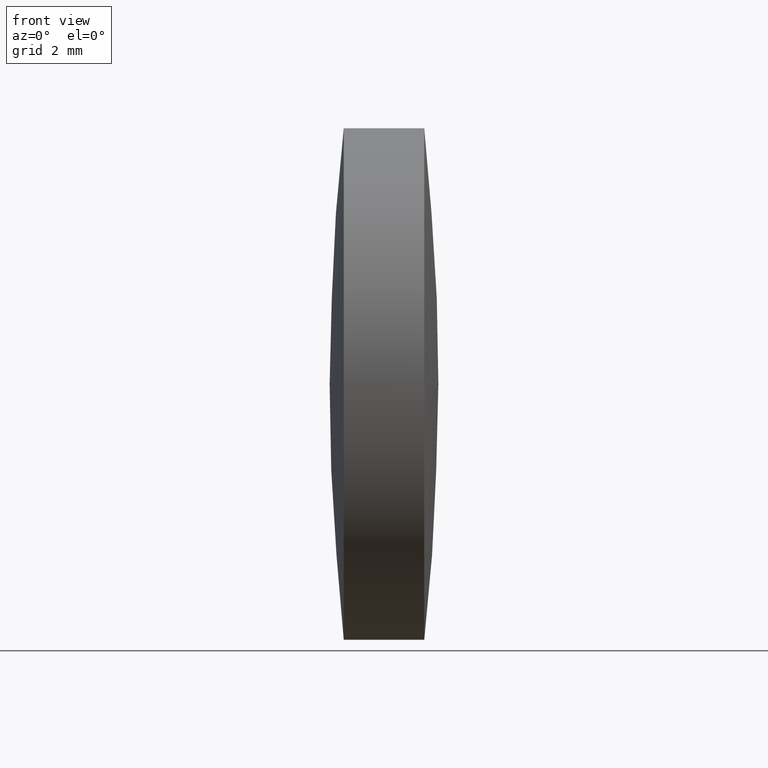
[diagram: clean part render]
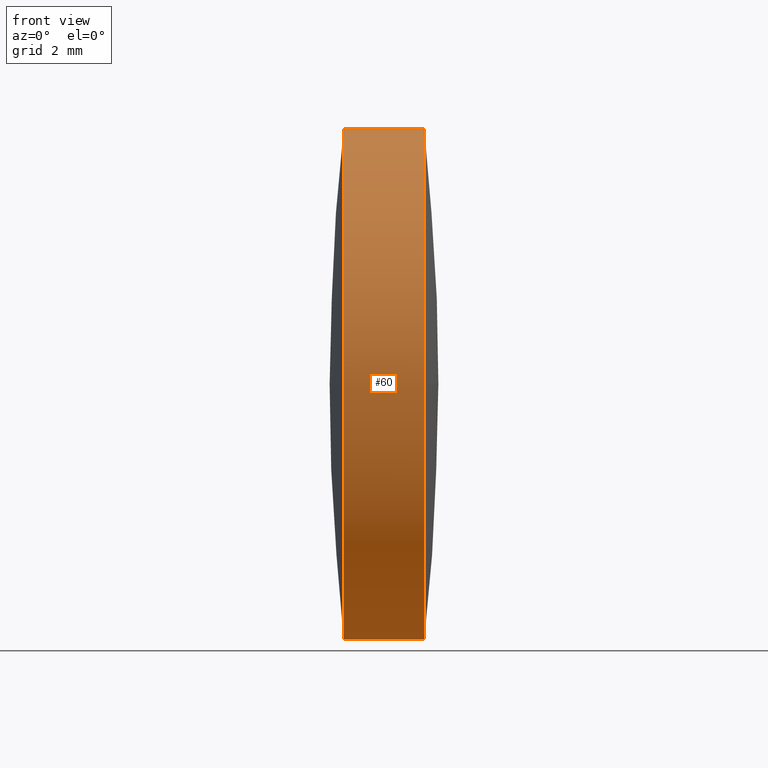
[diagram: same view with one face highlighted and labeled with its STEP entity id]
A machine part, front view. The second image highlights one B-rep face of the part: STEP entity #60.
In plain terms, the highlighted cylindrical surface (partial cylindrical patch) has radius 6.35 mm, axis along (-1, -0, -0).
Its self-contained STEP definition (entity closure, byte-faithful):
#4 = VERTEX_POINT ( 'NONE', #194 ) ;
#14 = DIRECTION ( 'NONE',  ( -1.000000000000000000, -0.0000000000000000000, -0.0000000000000000000 ) ) ;
#15 = DIRECTION ( 'NONE',  ( -1.000000000000000000, -0.0000000000000000000, -0.0000000000000000000 ) ) ;
#30 = CIRCLE ( 'NONE', #317, 6.349999999999997900 ) ;
#39 = DIRECTION ( 'NONE',  ( -1.000000000000000000, -0.0000000000000000000, -0.0000000000000000000 ) ) ;
#40 = CARTESIAN_POINT ( 'NONE',  ( 44.22913117304555200, 17.95805651159243500, 0.0000000000000000000 ) ) ;
#42 = CARTESIAN_POINT ( 'NONE',  ( 42.22906260161698100, 24.30805651159239000, 0.0000000000000000000 ) ) ;
#56 = ORIENTED_EDGE ( 'NONE', *, *, #247, .T. ) ;
#60 = ADVANCED_FACE ( 'NONE', ( #307 ), #319, .T. ) ;
#65 = CIRCLE ( 'NONE', #334, 6.349999999999997900 ) ;
#72 = ORIENTED_EDGE ( 'NONE', *, *, #240, .F. ) ;
#78 = VERTEX_POINT ( 'NONE', #222 ) ;
#86 = CARTESIAN_POINT ( 'NONE',  ( 44.22913117304555200, 24.30805651159239000, 0.0000000000000000000 ) ) ;
#87 = DIRECTION ( 'NONE',  ( 0.0000000000000000000, 0.0000000000000000000, 1.000000000000000000 ) ) ;
#88 = DIRECTION ( 'NONE',  ( -1.000000000000000000, -0.0000000000000000000, -0.0000000000000000000 ) ) ;
#101 = CARTESIAN_POINT ( 'NONE',  ( 42.22906260161698100, 24.30805651159239000, 0.0000000000000000000 ) ) ;
#121 = EDGE_CURVE ( 'NONE', #232, #4, #233, .T. ) ;
#131 = DIRECTION ( 'NONE',  ( -1.000000000000000000, -0.0000000000000000000, -0.0000000000000000000 ) ) ;
#133 = CIRCLE ( 'NONE', #196, 6.349999999999997900 ) ;
#136 = CIRCLE ( 'NONE', #185, 6.349999999999997900 ) ;
#137 = VERTEX_POINT ( 'NONE', #207 ) ;
#140 = ORIENTED_EDGE ( 'NONE', *, *, #121, .F. ) ;
#145 = DIRECTION ( 'NONE',  ( -1.000000000000000000, -0.0000000000000000000, -0.0000000000000000000 ) ) ;
#149 = CARTESIAN_POINT ( 'NONE',  ( 39.65270067541857900, 24.30805651159239000, -6.349999999999997900 ) ) ;
#151 = EDGE_CURVE ( 'NONE', #78, #137, #30, .T. ) ;
#164 = ORIENTED_EDGE ( 'NONE', *, *, #238, .T. ) ;
#167 = VECTOR ( 'NONE', #14, 1000.000000000000000 ) ;
#183 = CARTESIAN_POINT ( 'NONE',  ( 39.65270067541857900, 24.30805651159239000, 6.349999999999997900 ) ) ;
#185 = AXIS2_PLACEMENT_3D ( 'NONE', #205, #39, #282 ) ;
#192 = DIRECTION ( 'NONE',  ( -1.000000000000000000, -0.0000000000000000000, -0.0000000000000000000 ) ) ;
#194 = CARTESIAN_POINT ( 'NONE',  ( 42.22906260161698100, 24.30805651159239000, -6.349999999999997900 ) ) ;
#196 = AXIS2_PLACEMENT_3D ( 'NONE', #86, #145, #278 ) ;
#203 = EDGE_LOOP ( 'NONE', ( #140, #56, #217, #164, #333, #72 ) ) ;
#205 = CARTESIAN_POINT ( 'NONE',  ( 44.22913117304555200, 24.30805651159239000, 0.0000000000000000000 ) ) ;
#207 = CARTESIAN_POINT ( 'NONE',  ( 42.22906260161698100, 24.30805651159239000, 6.349999999999997900 ) ) ;
#215 = VERTEX_POINT ( 'NONE', #227 ) ;
#217 = ORIENTED_EDGE ( 'NONE', *, *, #284, .T. ) ;
#222 = CARTESIAN_POINT ( 'NONE',  ( 42.22906260161698100, 17.95805651159237500, -7.776507174585665500E-016 ) ) ;
#227 = CARTESIAN_POINT ( 'NONE',  ( 44.22913117304555200, 24.30805651159239000, 6.349999999999997900 ) ) ;
#232 = VERTEX_POINT ( 'NONE', #341 ) ;
#233 = LINE ( 'NONE', #149, #167 ) ;
#238 = EDGE_CURVE ( 'NONE', #215, #137, #271, .T. ) ;
#240 = EDGE_CURVE ( 'NONE', #4, #78, #65, .T. ) ;
#247 = EDGE_CURVE ( 'NONE', #232, #326, #133, .T. ) ;
#267 = DIRECTION ( 'NONE',  ( 0.0000000000000000000, 0.0000000000000000000, 1.000000000000000000 ) ) ;
#271 = LINE ( 'NONE', #183, #339 ) ;
#278 = DIRECTION ( 'NONE',  ( 0.0000000000000000000, 0.0000000000000000000, 1.000000000000000000 ) ) ;
#280 = DIRECTION ( 'NONE',  ( 0.0000000000000000000, 0.0000000000000000000, 1.000000000000000000 ) ) ;
#282 = DIRECTION ( 'NONE',  ( 0.0000000000000000000, 0.0000000000000000000, 1.000000000000000000 ) ) ;
#284 = EDGE_CURVE ( 'NONE', #326, #215, #136, .T. ) ;
#293 = CARTESIAN_POINT ( 'NONE',  ( 39.65270067541857900, 24.30805651159239000, 0.0000000000000000000 ) ) ;
#307 = FACE_OUTER_BOUND ( 'NONE', #203, .T. ) ;
#317 = AXIS2_PLACEMENT_3D ( 'NONE', #101, #131, #87 ) ;
#319 = CYLINDRICAL_SURFACE ( 'NONE', #344, 6.349999999999997900 ) ;
#326 = VERTEX_POINT ( 'NONE', #40 ) ;
#333 = ORIENTED_EDGE ( 'NONE', *, *, #151, .F. ) ;
#334 = AXIS2_PLACEMENT_3D ( 'NONE', #42, #88, #280 ) ;
#339 = VECTOR ( 'NONE', #15, 1000.000000000000000 ) ;
#341 = CARTESIAN_POINT ( 'NONE',  ( 44.22913117304555200, 24.30805651159239000, -6.349999999999997900 ) ) ;
#344 = AXIS2_PLACEMENT_3D ( 'NONE', #293, #192, #267 ) ;